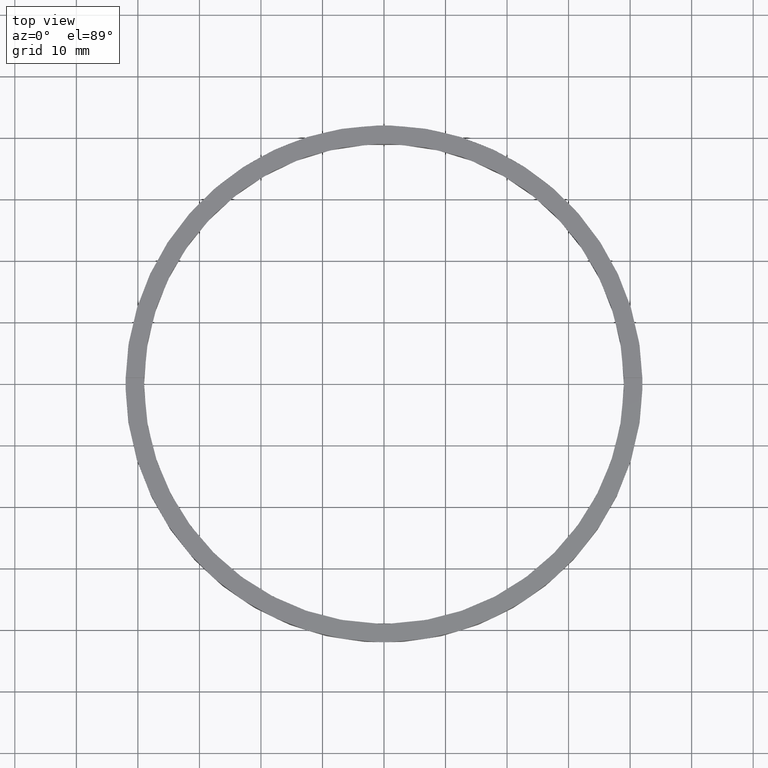
[diagram: clean part render]
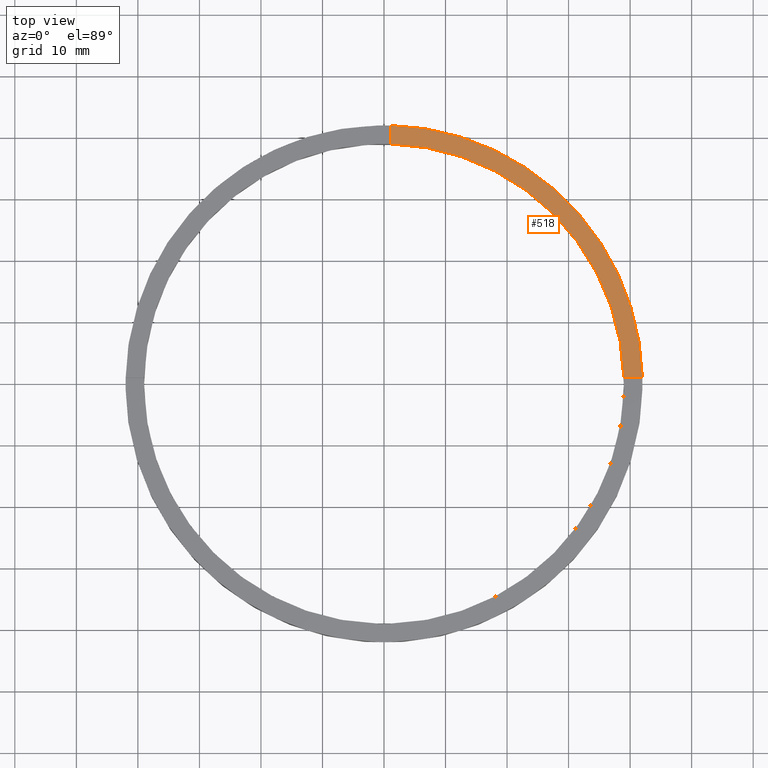
[diagram: same view with one face highlighted and labeled with its STEP entity id]
A machine part, top view. The second image highlights one B-rep face of the part: STEP entity #518.
In plain terms, the highlighted planar face has unit normal (0, 0, 1).
Its self-contained STEP definition (entity closure, byte-faithful):
#6 = CARTESIAN_POINT ( 'NONE',  ( 0.9999999999999742428, 32.00000000000000000, 4.500000000000000000 ) ) ;
#43 = VERTEX_POINT ( 'NONE', #302 ) ;
#58 = EDGE_CURVE ( 'NONE', #43, #318, #381, .T. ) ;
#67 = VECTOR ( 'NONE', #561, 1000.000000000000000 ) ;
#69 = AXIS2_PLACEMENT_3D ( 'NONE', #775, #330, #168 ) ;
#95 = DIRECTION ( 'NONE',  ( 1.000000000000000000, 0.000000000000000000, 0.000000000000000000 ) ) ;
#104 = VERTEX_POINT ( 'NONE', #299 ) ;
#113 = DIRECTION ( 'NONE',  ( 1.000000000000000000, 0.000000000000000000, -0.000000000000000000 ) ) ;
#128 = VECTOR ( 'NONE', #523, 1000.000000000000000 ) ;
#139 = CIRCLE ( 'NONE', #509, 42.00000000000000000 ) ;
#168 = DIRECTION ( 'NONE',  ( 1.000000000000000000, 0.000000000000000000, 0.000000000000000000 ) ) ;
#178 = CARTESIAN_POINT ( 'NONE',  ( 31.99999999999999289, 0.9999999999998425704, 4.500000000000000000 ) ) ;
#179 = FACE_OUTER_BOUND ( 'NONE', #575, .T. ) ;
#199 = VERTEX_POINT ( 'NONE', #465 ) ;
#218 = ORIENTED_EDGE ( 'NONE', *, *, #58, .F. ) ;
#225 = CARTESIAN_POINT ( 'NONE',  ( 0.000000000000000000, 0.000000000000000000, 4.500000000000000000 ) ) ;
#299 = CARTESIAN_POINT ( 'NONE',  ( 0.9999999999999742428, 38.98717737923585247, 4.500000000000000000 ) ) ;
#302 = CARTESIAN_POINT ( 'NONE',  ( 41.98809355043403713, 0.9999999999998434586, 4.500000000000000000 ) ) ;
#318 = VERTEX_POINT ( 'NONE', #728 ) ;
#330 = DIRECTION ( 'NONE',  ( 0.000000000000000000, 0.000000000000000000, 1.000000000000000000 ) ) ;
#340 = EDGE_CURVE ( 'NONE', #318, #104, #425, .T. ) ;
#353 = PLANE ( 'NONE',  #543 ) ;
#374 = ORIENTED_EDGE ( 'NONE', *, *, #340, .F. ) ;
#376 = ORIENTED_EDGE ( 'NONE', *, *, #756, .F. ) ;
#381 = LINE ( 'NONE', #178, #128 ) ;
#386 = ORIENTED_EDGE ( 'NONE', *, *, #476, .T. ) ;
#425 = CIRCLE ( 'NONE', #69, 39.00000000000000000 ) ;
#465 = CARTESIAN_POINT ( 'NONE',  ( 0.9999999999999742428, 41.98809355043403713, 4.500000000000000000 ) ) ;
#476 = EDGE_CURVE ( 'NONE', #43, #199, #139, .T. ) ;
#480 = CARTESIAN_POINT ( 'NONE',  ( 0.000000000000000000, 0.000000000000000000, 4.500000000000000000 ) ) ;
#509 = AXIS2_PLACEMENT_3D ( 'NONE', #225, #758, #95 ) ;
#518 = ADVANCED_FACE ( 'NONE', ( #179 ), #353, .T. ) ;
#523 = DIRECTION ( 'NONE',  ( -1.000000000000000000, -8.673617379884034239E-17, -0.000000000000000000 ) ) ;
#543 = AXIS2_PLACEMENT_3D ( 'NONE', #480, #731, #113 ) ;
#561 = DIRECTION ( 'NONE',  ( 0.000000000000000000, 1.000000000000000000, 0.000000000000000000 ) ) ;
#575 = EDGE_LOOP ( 'NONE', ( #376, #374, #218, #386 ) ) ;
#576 = LINE ( 'NONE', #6, #67 ) ;
#728 = CARTESIAN_POINT ( 'NONE',  ( 38.98717737923585958, 0.9999999999998432365, 4.500000000000000000 ) ) ;
#731 = DIRECTION ( 'NONE',  ( 0.000000000000000000, 0.000000000000000000, 1.000000000000000000 ) ) ;
#756 = EDGE_CURVE ( 'NONE', #104, #199, #576, .T. ) ;
#758 = DIRECTION ( 'NONE',  ( 0.000000000000000000, 0.000000000000000000, 1.000000000000000000 ) ) ;
#775 = CARTESIAN_POINT ( 'NONE',  ( 0.000000000000000000, 0.000000000000000000, 4.500000000000000000 ) ) ;